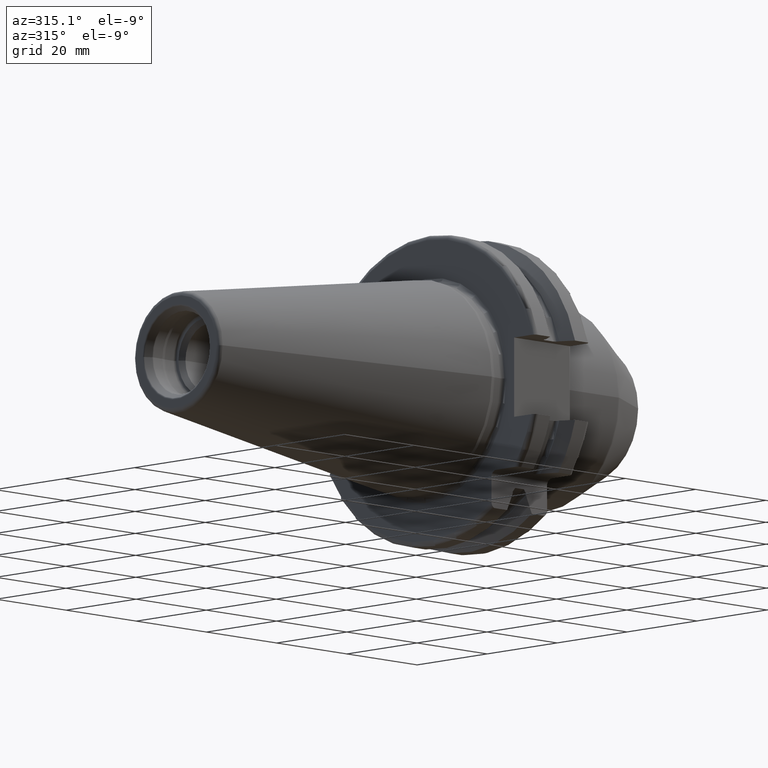
[diagram: clean part render]
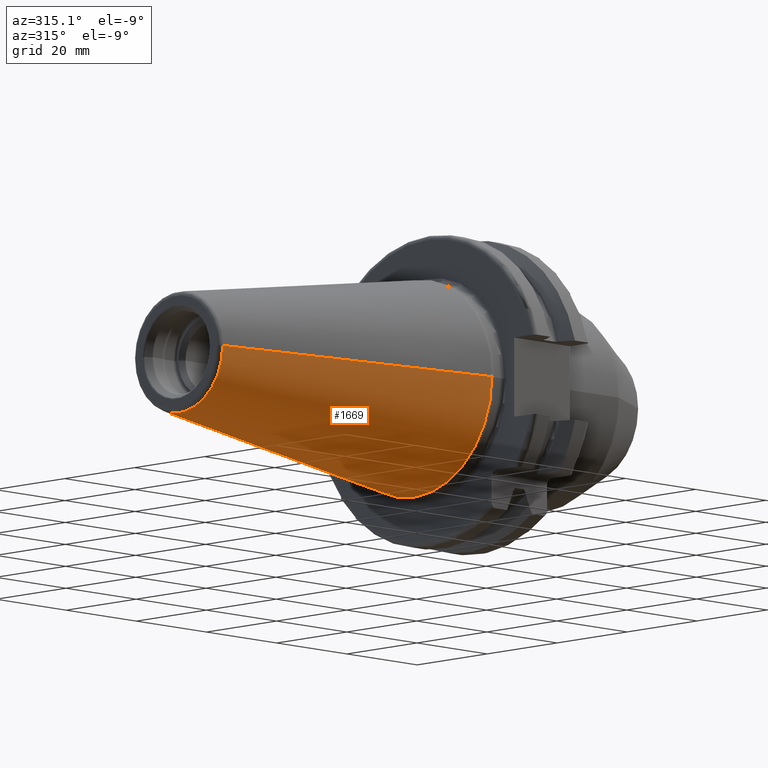
[diagram: same view with one face highlighted and labeled with its STEP entity id]
A machine part, auxiliary view. The second image highlights one B-rep face of the part: STEP entity #1669.
In plain terms, the highlighted conical surface has half-angle 8.298 deg.
Its self-contained STEP definition (entity closure, byte-faithful):
#32=CARTESIAN_POINT('',(-6.743710273571E1,0.E0,0.E0));
#33=DIRECTION('',(-1.E0,0.E0,0.E0));
#34=DIRECTION('',(0.E0,1.E0,0.E0));
#35=AXIS2_PLACEMENT_3D('',#32,#33,#34);
#47=DIRECTION('',(-9.895312636440E-1,-1.443186691705E-1,0.E0));
#48=VECTOR('',#47,6.765568998391E1);
#49=CARTESIAN_POINT('',(-4.896823332305E-1,2.215358204157E1,0.E0));
#50=LINE('',#49,#48);
#51=DIRECTION('',(-9.895312636440E-1,1.443186691705E-1,0.E0));
#52=VECTOR('',#51,6.765568998391E1);
#53=CARTESIAN_POINT('',(-4.896823332305E-1,-2.215358204157E1,0.E0));
#54=LINE('',#53,#52);
#55=CARTESIAN_POINT('',(-4.896823332305E-1,0.E0,0.E0));
#56=DIRECTION('',(-1.E0,0.E0,0.E0));
#57=DIRECTION('',(0.E0,1.E0,0.E0));
#58=AXIS2_PLACEMENT_3D('',#55,#56,#57);
#1332=CARTESIAN_POINT('',(-6.743710273571E1,1.238960290128E1,0.E0));
#1334=VERTEX_POINT('',#1332);
#1336=CARTESIAN_POINT('',(-6.743710273571E1,-1.238960290128E1,0.E0));
#1338=VERTEX_POINT('',#1336);
#1400=CARTESIAN_POINT('',(-4.896823332305E-1,2.215358204157E1,0.E0));
#1401=VERTEX_POINT('',#1400);
#1402=CARTESIAN_POINT('',(-4.896823332305E-1,-2.215358204157E1,0.E0));
#1403=VERTEX_POINT('',#1402);
#1657=CARTESIAN_POINT('',(-3.396339253447E1,0.E0,0.E0));
#1658=DIRECTION('',(1.E0,0.E0,0.E0));
#1659=DIRECTION('',(0.E0,-1.E0,0.E0));
#1660=AXIS2_PLACEMENT_3D('',#1657,#1658,#1659);
#1661=CONICAL_SURFACE('',#1660,1.727159247143E1,8.297826828206E0);
#1662=ORIENTED_EDGE('',*,*,#1647,.T.);
#1663=ORIENTED_EDGE('',*,*,#1624,.T.);
#1664=ORIENTED_EDGE('',*,*,#1651,.F.);
#1666=ORIENTED_EDGE('',*,*,#1665,.F.);
#1667=EDGE_LOOP('',(#1662,#1663,#1664,#1666));
#1668=FACE_OUTER_BOUND('',#1667,.F.);
#1669=ADVANCED_FACE('',(#1668),#1661,.T.);
#36=CIRCLE('',#35,1.238960290128E1);
#59=CIRCLE('',#58,2.215358204157E1);
#1624=EDGE_CURVE('',#1334,#1338,#36,.T.);
#1647=EDGE_CURVE('',#1401,#1334,#50,.T.);
#1651=EDGE_CURVE('',#1403,#1338,#54,.T.);
#1665=EDGE_CURVE('',#1401,#1403,#59,.T.);